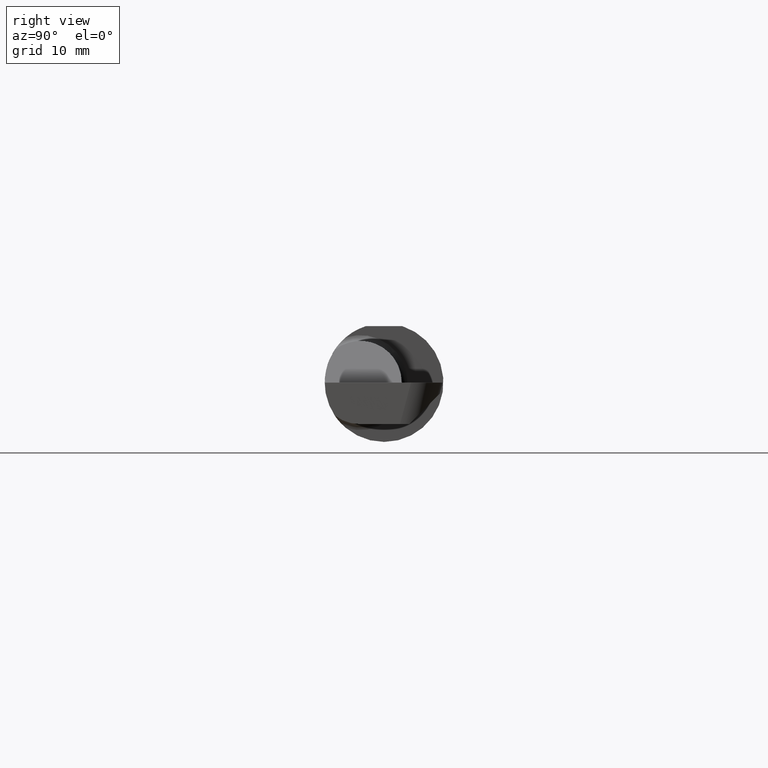
[diagram: clean part render]
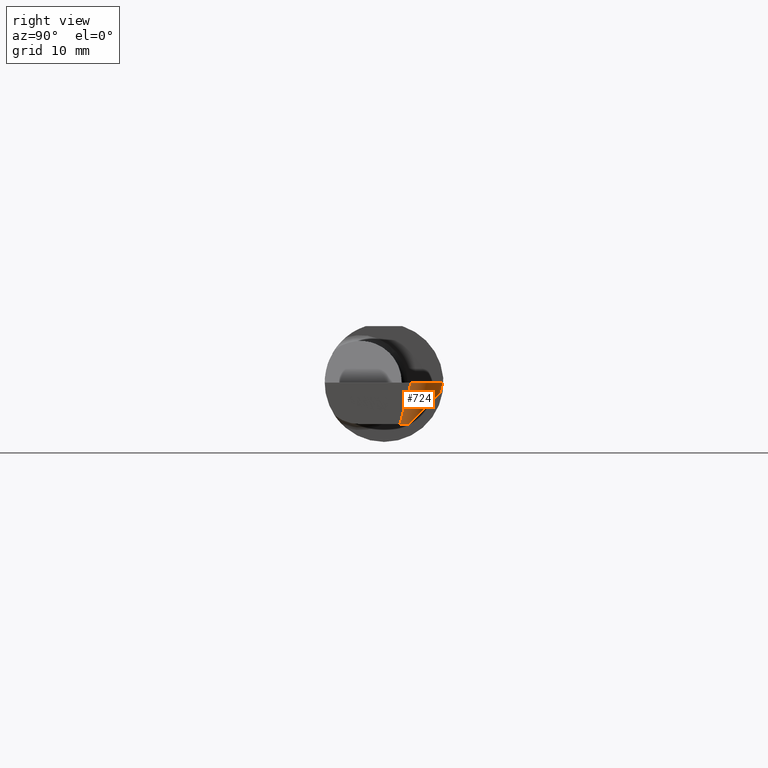
[diagram: same view with one face highlighted and labeled with its STEP entity id]
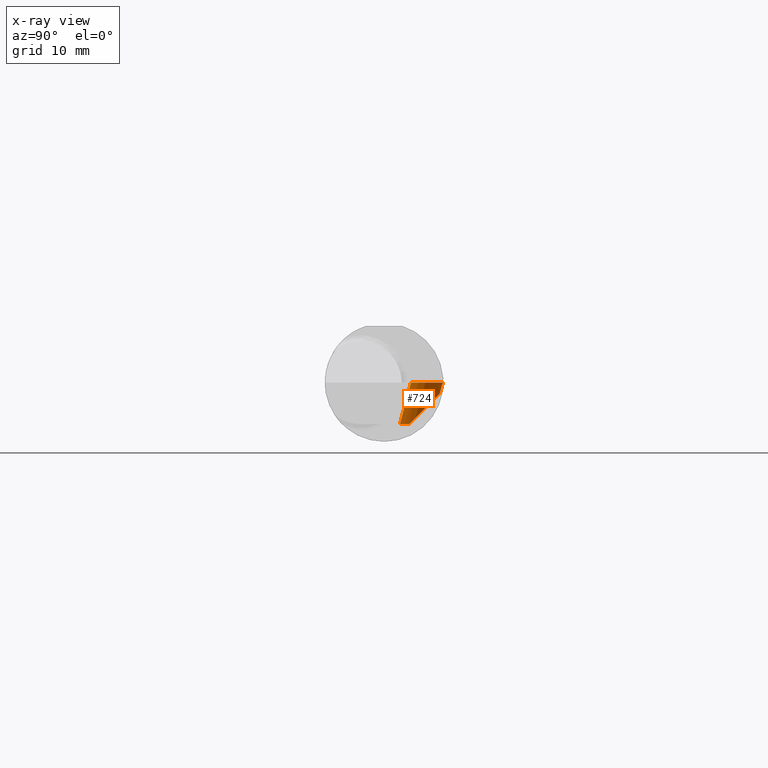
[diagram: x-ray of the same camera — body ghosted, the highlighted face saturated]
A machine part, right view. The second image highlights one B-rep face of the part: STEP entity #724.
The next image is the same camera in x-ray: the body ghosted, the highlighted face saturated — about 0% of this face is hidden behind the body in this view.
In plain terms, the highlighted cylindrical surface (edge-blend (fillet) strip) has radius 3.1877 mm, axis along (-0.0259, -0.2587, -0.9656).
Its self-contained STEP definition (entity closure, byte-faithful):
#24 = CARTESIAN_POINT ( 'NONE',  ( 2.873967416046592227, 0.2348243371481683328, -0.04599999999999999922 ) ) ;
#38 = ORIENTED_EDGE ( 'NONE', *, *, #77, .F. ) ;
#51 = VERTEX_POINT ( 'NONE', #85 ) ;
#77 = EDGE_CURVE ( 'NONE', #642, #586, #120, .T. ) ;
#85 = CARTESIAN_POINT ( 'NONE',  ( 2.995099234303557623, 0.06653939388036611557, -0.1750000000000001277 ) ) ;
#112 = CARTESIAN_POINT ( 'NONE',  ( 2.999793206199442785, 0.1134305025558126762, 0.000000000000000000 ) ) ;
#117 = VERTEX_POINT ( 'NONE', #596 ) ;
#118 = EDGE_CURVE ( 'NONE', #51, #542, #201, .T. ) ;
#120 =( BOUNDED_CURVE ( )  B_SPLINE_CURVE ( 3, ( #24, #373, #718, #262 ),
 .UNSPECIFIED., .F., .F. ) 
 B_SPLINE_CURVE_WITH_KNOTS ( ( 4, 4 ),
 ( 3.126640370658176682, 4.420746632591429304 ),
 .UNSPECIFIED. ) 
 CURVE ( )  GEOMETRIC_REPRESENTATION_ITEM ( )  RATIONAL_B_SPLINE_CURVE ( ( 1.000000000000000000, 0.8652424962921516638, 0.8652424962921516638, 1.000000000000000000 ) ) 
 REPRESENTATION_ITEM ( '' )  );
#121 = VECTOR ( 'NONE', #421, 39.37007874015748854 ) ;
#141 = CARTESIAN_POINT ( 'NONE',  ( 2.873272513379383497, 0.2278825068156204725, -0.07190726349859134781 ) ) ;
#166 = ORIENTED_EDGE ( 'NONE', *, *, #423, .F. ) ;
#198 =( BOUNDED_CURVE ( )  B_SPLINE_CURVE ( 3, ( #710, #611, #644, #591 ),
 .UNSPECIFIED., .F., .F. ) 
 B_SPLINE_CURVE_WITH_KNOTS ( ( 4, 4 ),
 ( 4.339337998362998050, 4.645220385064936508 ),
 .UNSPECIFIED. ) 
 CURVE ( )  GEOMETRIC_REPRESENTATION_ITEM ( )  RATIONAL_B_SPLINE_CURVE ( ( 1.000000000000000000, 0.9922181835937360361, 0.9922181835937360361, 1.000000000000000000 ) ) 
 REPRESENTATION_ITEM ( '' )  );
#201 = LINE ( 'NONE', #321, #700 ) ;
#232 = CARTESIAN_POINT ( 'NONE',  ( 2.873967416046592227, 0.2348243371481683328, -0.04599999999999999922 ) ) ;
#237 = CARTESIAN_POINT ( 'NONE',  ( 2.875201260087796307, 0.2471499999999999808, 0.000000000000000000 ) ) ;
#243 = FACE_OUTER_BOUND ( 'NONE', #467, .T. ) ;
#245 = AXIS2_PLACEMENT_3D ( 'NONE', #475, #646, #691 ) ;
#262 = CARTESIAN_POINT ( 'NONE',  ( 2.990641147540828104, 0.1058243371481696476, -0.1750000000000001277 ) ) ;
#263 = EDGE_CURVE ( 'NONE', #542, #117, #276, .T. ) ;
#276 =( BOUNDED_CURVE ( )  B_SPLINE_CURVE ( 3, ( #412, #582, #572, #237 ),
 .UNSPECIFIED., .F., .F. ) 
 B_SPLINE_CURVE_WITH_KNOTS ( ( 4, 4 ),
 ( 1.637964922114649946, 3.237953570749840360 ),
 .UNSPECIFIED. ) 
 CURVE ( )  GEOMETRIC_REPRESENTATION_ITEM ( )  RATIONAL_B_SPLINE_CURVE ( ( 1.000000000000000000, 0.7978071872141911935, 0.7978071872141911935, 1.000000000000000000 ) ) 
 REPRESENTATION_ITEM ( '' )  );
#321 = CARTESIAN_POINT ( 'NONE',  ( 2.999818293584536999, 0.1136811166044124355, 0.0009353043624648263573 ) ) ;
#341 = ORIENTED_EDGE ( 'NONE', *, *, #263, .F. ) ;
#373 = CARTESIAN_POINT ( 'NONE',  ( 2.932279805067560030, 0.2348243371481684993, -0.04599999999999983963 ) ) ;
#412 = CARTESIAN_POINT ( 'NONE',  ( 2.999793206199442785, 0.1134305025558126762, 0.000000000000000000 ) ) ;
#421 = DIRECTION ( 'NONE',  ( -0.02590004391968267136, -0.2587322210431823866, -0.9656017944882974158 ) ) ;
#423 = EDGE_CURVE ( 'NONE', #586, #51, #198, .T. ) ;
#429 = DIRECTION ( 'NONE',  ( 0.02590004391968268524, 0.2587322210431824421, 0.9656017944882975268 ) ) ;
#454 = ORIENTED_EDGE ( 'NONE', *, *, #491, .F. ) ;
#455 = CARTESIAN_POINT ( 'NONE',  ( 2.990641147540828104, 0.1058243371481696476, -0.1750000000000001277 ) ) ;
#467 = EDGE_LOOP ( 'NONE', ( #341, #701, #166, #38, #454 ) ) ;
#475 = CARTESIAN_POINT ( 'NONE',  ( 2.873272513379382609, 0.1066588156163424256, -0.03942547333822495753 ) ) ;
#491 = EDGE_CURVE ( 'NONE', #117, #642, #553, .T. ) ;
#542 = VERTEX_POINT ( 'NONE', #112 ) ;
#553 = LINE ( 'NONE', #141, #121 ) ;
#572 = CARTESIAN_POINT ( 'NONE',  ( 2.950455787437228139, 0.2471500000000000918, 7.751331101916276061E-18 ) ) ;
#582 = CARTESIAN_POINT ( 'NONE',  ( 3.002511784637379222, 0.1912804032740403892, 1.376310067157437428E-18 ) ) ;
#586 = VERTEX_POINT ( 'NONE', #455 ) ;
#591 = CARTESIAN_POINT ( 'NONE',  ( 2.995099234303557623, 0.06653939388036611557, -0.1750000000000001277 ) ) ;
#596 = CARTESIAN_POINT ( 'NONE',  ( 2.875201260087796307, 0.2471499999999999808, 0.000000000000000000 ) ) ;
#611 = CARTESIAN_POINT ( 'NONE',  ( 2.994065777569717923, 0.09303079560524196712, -0.1750000000000001277 ) ) ;
#642 = VERTEX_POINT ( 'NONE', #232 ) ;
#644 = CARTESIAN_POINT ( 'NONE',  ( 2.995563461189592491, 0.07983311256960283486, -0.1750000000000001277 ) ) ;
#646 = DIRECTION ( 'NONE',  ( -0.02590004391968268177, -0.2587322210431824421, -0.9656017944882975268 ) ) ;
#691 = DIRECTION ( 'NONE',  ( 0.000000000000000000, 0.9659258262890682012, -0.2588190451025210170 ) ) ;
#695 = CYLINDRICAL_SURFACE ( 'NONE', #245, 0.1254999999999999727 ) ;
#700 = VECTOR ( 'NONE', #429, 39.37007874015748854 ) ;
#701 = ORIENTED_EDGE ( 'NONE', *, *, #118, .F. ) ;
#710 = CARTESIAN_POINT ( 'NONE',  ( 2.990641147540828104, 0.1058243371481696476, -0.1750000000000001277 ) ) ;
#718 = CARTESIAN_POINT ( 'NONE',  ( 2.977228179653960805, 0.1851272866862818944, -0.09569705046188696496 ) ) ;
#724 = ADVANCED_FACE ( 'NONE', ( #243 ), #695, .T. ) ;